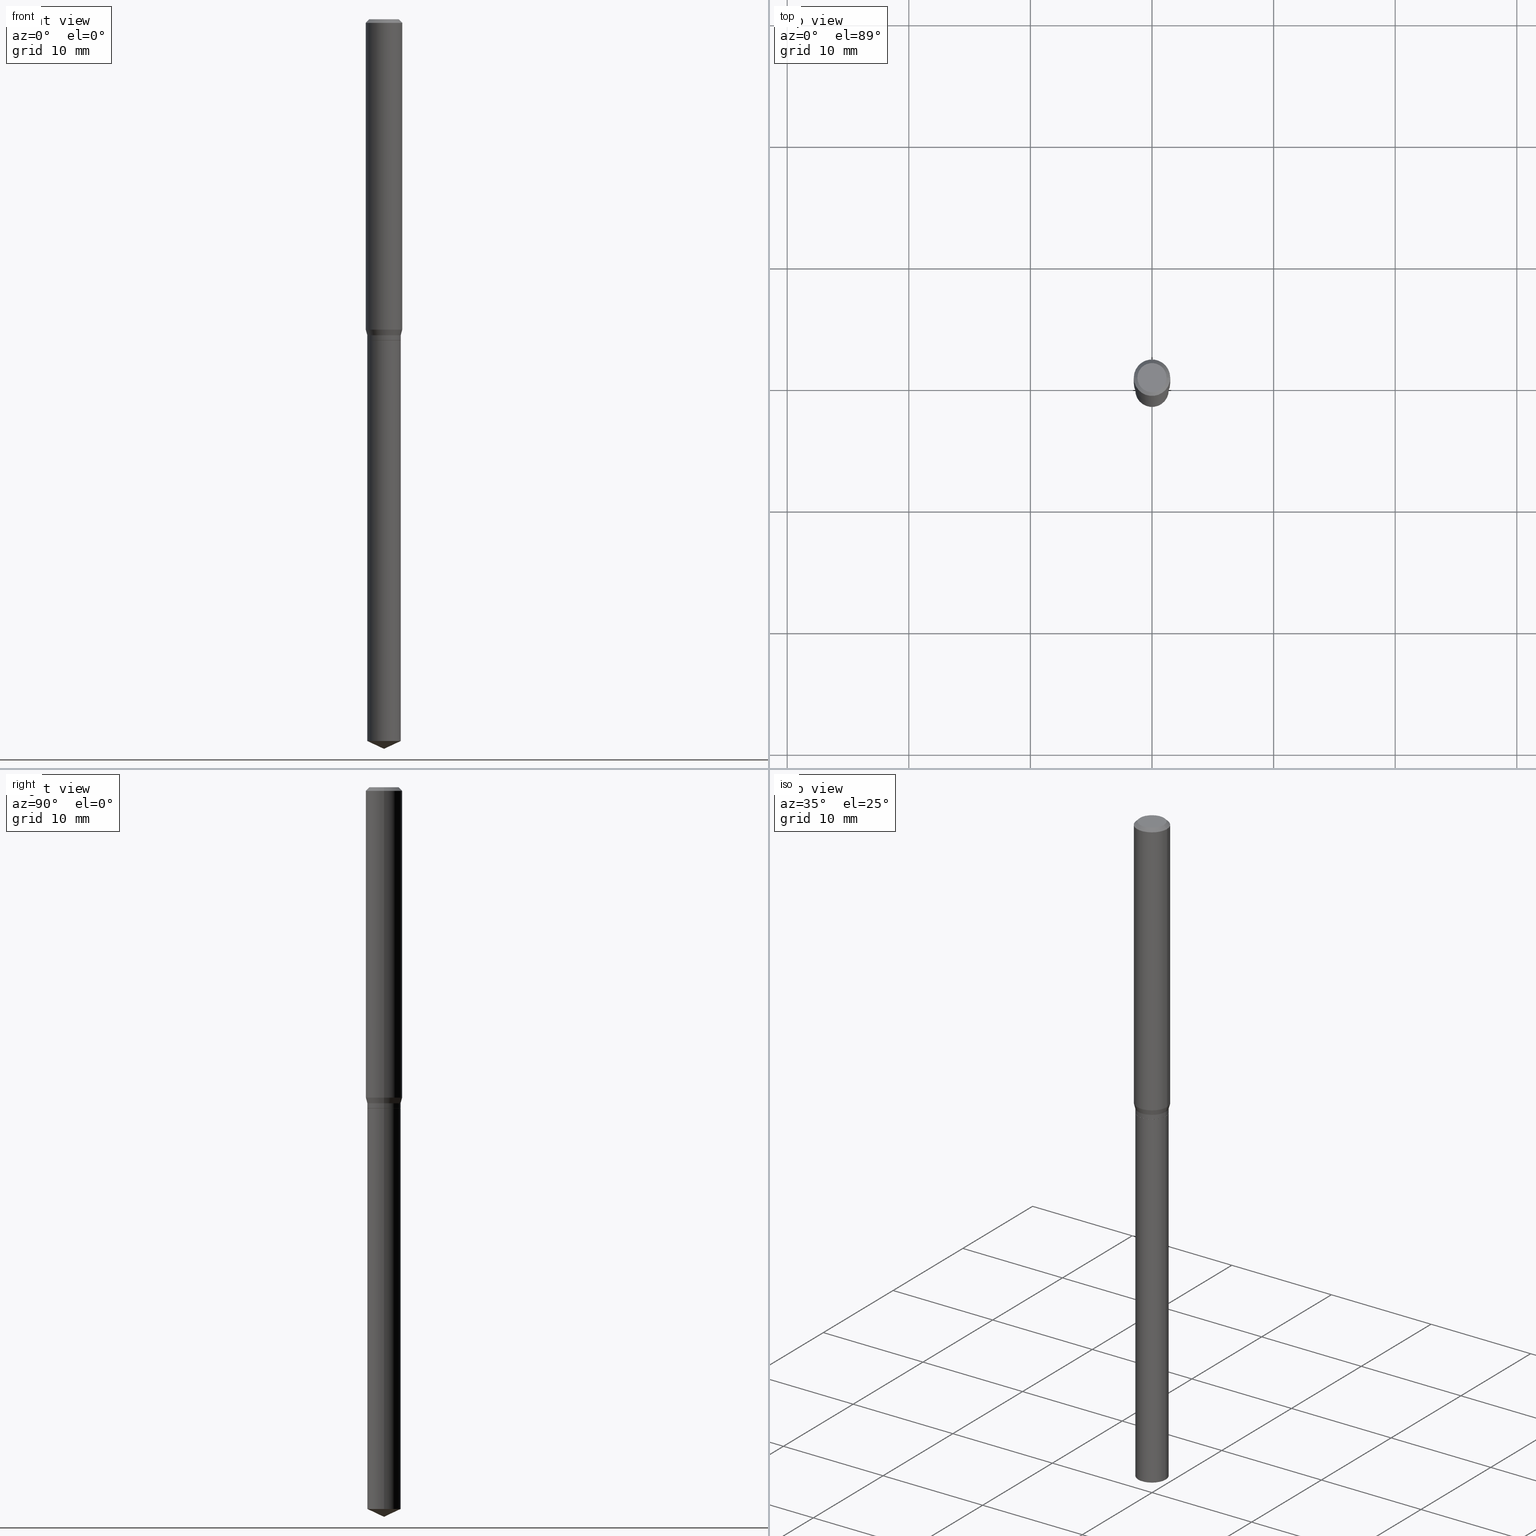
[diagram: canonical four-view strip — front | top / right | iso, engineering-drawing reading convention]
A machine part, canonical four-view strip (front | top / right | iso — engineering-drawing reading convention). The complete STEP part file that produces these views, byte-faithful:
ISO-10303-21;
HEADER;
FILE_DESCRIPTION (( 'STEP AP203' ),
    '1' );
FILE_NAME ('07691.STEP',
    '2024-04-24T01:07:37',
    ( '' ),
    ( '' ),
    'SwSTEP 2.0',
    'SolidWorks 2023',
    '' );
FILE_SCHEMA (( 'CONFIG_CONTROL_DESIGN' ));
ENDSEC;

DATA;
#1 = DIRECTION ( 'NONE',  ( 0.7071067811866138531, -2.468850131082952047E-15, 0.7071067811864811814 ) ) ;
#2 = ADVANCED_FACE ( 'NONE', ( #222 ), #72, .F. ) ;
#3 = DIRECTION ( 'NONE',  ( 1.000000000000000000, -6.982962677686263555E-15, 0.000000000000000000 ) ) ;
#4 = CC_DESIGN_SECURITY_CLASSIFICATION ( #426, ( #488 ) ) ;
#5 = CARTESIAN_POINT ( 'NONE',  ( -2.731847993663685378E-16, -8.247577218615278049E-15, -2.362200000000000077 ) ) ;
#6 = PERSON_AND_ORGANIZATION ( #11, #364 ) ;
#7 = ORIENTED_EDGE ( 'NONE', *, *, #200, .T. ) ;
#8 = DIRECTION ( 'NONE',  ( 1.000000000000000000, -6.982962677686261977E-15, 0.000000000000000000 ) ) ;
#9 = CARTESIAN_POINT ( 'NONE',  ( 0.05905000000000006077, -4.123439461173744764E-16, 2.879382386107503023E-30 ) ) ;
#10 = AXIS2_PLACEMENT_3D ( 'NONE', #161, #44, #420 ) ;
#11 = PERSON ( 'UNSPECIFIED', 'UNSPECIFIED', 'UNSPECIFIED', ('UNSPECIFIED'), ('UNSPECIFIED'), ('UNSPECIFIED') ) ;
#12 = AXIS2_PLACEMENT_3D ( 'NONE', #276, #338, #86 ) ;
#13 = CARTESIAN_POINT ( 'NONE',  ( -9.050161304213721862E-28, 1.292123180114298104E-13, 37.00787874015748002 ) ) ;
#14 = EDGE_CURVE ( 'NONE', #250, #312, #337, .T. ) ;
#15 = AXIS2_PLACEMENT_3D ( 'NONE', #98, #152, #317 ) ;
#16 = DIRECTION ( 'NONE',  ( -0.7071067811866138531, 7.493145998870593974E-15, 0.7071067811864811814 ) ) ;
#17 = ORIENTED_EDGE ( 'NONE', *, *, #192, .F. ) ;
#18 = DIRECTION ( 'NONE',  ( 1.000000000000000000, -6.982962677686266711E-15, 4.876185090822587894E-29 ) ) ;
#19 = VECTOR ( 'NONE', #230, 39.37007874015748143 ) ;
#20 = PRODUCT_DEFINITION ( 'UNKNOWN', '', #488, #32 ) ;
#21 = ORIENTED_EDGE ( 'NONE', *, *, #325, .T. ) ;
#22 = ORIENTED_EDGE ( 'NONE', *, *, #404, .F. ) ;
#23 = AXIS2_PLACEMENT_3D ( 'NONE', #270, #79, #380 ) ;
#24 = CONICAL_SURFACE ( 'NONE', #302, 84.42940631927254458, 1.134464013796307791 ) ;
#25 = ORIENTED_EDGE ( 'NONE', *, *, #116, .T. ) ;
#26 = DIRECTION ( 'NONE',  ( -1.000000000000000000, 6.982962677686265922E-15, -4.876176775795935793E-29 ) ) ;
#27 = VERTEX_POINT ( 'NONE', #37 ) ;
#28 = EDGE_CURVE ( 'NONE', #145, #65, #376, .T. ) ;
#29 = CARTESIAN_POINT ( 'NONE',  ( 0.05414999999999999675, -4.007173132590277853E-15, -1.039400000000000324 ) ) ;
#30 = ORIENTED_EDGE ( 'NONE', *, *, #275, .T. ) ;
#31 = VECTOR ( 'NONE', #88, 39.37007874015748143 ) ;
#32 = DESIGN_CONTEXT ( 'detailed design', #370, 'design' ) ;
#33 = CARTESIAN_POINT ( 'NONE',  ( 0.05904999999999999832, -4.535783407291118600E-16, -0.01181000000000007044 ) ) ;
#34 = FACE_OUTER_BOUND ( 'NONE', #246, .T. ) ;
#35 = EDGE_CURVE ( 'NONE', #381, #243, #399, .T. ) ;
#36 = DIRECTION ( 'NONE',  ( -2.445468806185136597E-29, 3.491481338843145583E-15, 1.000000000000000000 ) ) ;
#37 = CARTESIAN_POINT ( 'NONE',  ( 0.05414999999999999675, -4.007173132590277853E-15, -1.039400000000000324 ) ) ;
#38 = COORDINATED_UNIVERSAL_TIME_OFFSET ( 5, 0, .BEHIND. ) ;
#39 = DIRECTION ( 'NONE',  ( 1.000000000000000000, -6.982962677686263555E-15, 0.000000000000000000 ) ) ;
#40 = PERSON_AND_ORGANIZATION ( #11, #364 ) ;
#41 = EDGE_CURVE ( 'NONE', #65, #177, #189, .T. ) ;
#42 = CARTESIAN_POINT ( 'NONE',  ( -9.050161304213721862E-28, 1.292123180114298104E-13, 37.00787874015748002 ) ) ;
#43 = LINE ( 'NONE', #49, #31 ) ;
#44 = DIRECTION ( 'NONE',  ( -2.438088387897960049E-29, 3.491481338843145188E-15, 1.000000000000000000 ) ) ;
#45 = ORIENTED_EDGE ( 'NONE', *, *, #450, .T. ) ;
#46 = COORDINATED_UNIVERSAL_TIME_OFFSET ( 5, 0, .BEHIND. ) ;
#47 = EDGE_CURVE ( 'NONE', #312, #243, #294, .T. ) ;
#48 = DIRECTION ( 'NONE',  ( 1.000000000000000000, -6.982962677686266711E-15, 4.876176775795935232E-29 ) ) ;
#49 = CARTESIAN_POINT ( 'NONE',  ( -0.05414999999999998981, -3.187724814490212424E-15, -1.023200000000000109 ) ) ;
#50 = AXIS2_PLACEMENT_3D ( 'NONE', #475, #351, #356 ) ;
#51 = DIRECTION ( 'NONE',  ( 1.000000000000000000, -6.982962677686267499E-15, 0.000000000000000000 ) ) ;
#52 = ADVANCED_FACE ( 'NONE', ( #34 ), #264, .T. ) ;
#53 = ORIENTED_EDGE ( 'NONE', *, *, #435, .F. ) ;
#54 = DIRECTION ( 'NONE',  ( 0.000000000000000000, 0.000000000000000000, 1.000000000000000000 ) ) ;
#55 = CIRCLE ( 'NONE', #219, 0.05414999999999998981 ) ;
#56 = ORIENTED_EDGE ( 'NONE', *, *, #192, .T. ) ;
#57 = PERSON_AND_ORGANIZATION_ROLE ( 'design_owner' ) ;
#58 = ORIENTED_EDGE ( 'NONE', *, *, #125, .T. ) ;
#59 = CONICAL_SURFACE ( 'NONE', #347, 0.05364999999999999630, 0.7853981633975420928 ) ;
#60 =( NAMED_UNIT ( * ) PLANE_ANGLE_UNIT ( ) SI_UNIT ( $, .RADIAN. ) );
#61 = DIRECTION ( 'NONE',  ( 1.000000000000000000, -6.982962677686261977E-15, 0.000000000000000000 ) ) ;
#62 = EDGE_CURVE ( 'NONE', #250, #403, #445, .T. ) ;
#63 = ORIENTED_EDGE ( 'NONE', *, *, #232, .F. ) ;
#64 = DIRECTION ( 'NONE',  ( -0.7071067811865453523, 2.468850131082234184E-15, -0.7071067811865496822 ) ) ;
#65 = VERTEX_POINT ( 'NONE', #224 ) ;
#66 = LINE ( 'NONE', #29, #300 ) ;
#67 = DIRECTION ( 'NONE',  ( 1.000000000000000000, -6.982962677686266711E-15, 4.876185090822587894E-29 ) ) ;
#68 = CIRCLE ( 'NONE', #479, 0.05905000000000011628 ) ;
#69 = ADVANCED_FACE ( 'NONE', ( #485 ), #113, .T. ) ;
#70 = CARTESIAN_POINT ( 'NONE',  ( 5.776686413970529753E-29, -8.247577218615279626E-15, -2.362200000000000077 ) ) ;
#71 = CARTESIAN_POINT ( 'NONE',  ( 2.541820277148831753E-29, -3.629045703593565980E-15, -1.039400000000000324 ) ) ;
#72 = PLANE ( 'NONE',  #323 ) ;
#73 = ADVANCED_BREP_SHAPE_REPRESENTATION ( '07691', ( #455, #283, #99 ), #147 ) ;
#74 = CARTESIAN_POINT ( 'NONE',  ( 2.502203682488631823E-29, -3.572483705904306898E-15, -1.023200000000000109 ) ) ;
#75 = COORDINATED_UNIVERSAL_TIME_OFFSET ( 5, 0, .BEHIND. ) ;
#76 = DIRECTION ( 'NONE',  ( -2.445468806185136597E-29, 3.491481338843145583E-15, 1.000000000000000000 ) ) ;
#77 = LINE ( 'NONE', #242, #402 ) ;
#78 =( NAMED_UNIT ( * ) SI_UNIT ( $, .STERADIAN. ) SOLID_ANGLE_UNIT ( ) );
#79 = DIRECTION ( 'NONE',  ( -2.445468806185136597E-29, 3.491481338843145583E-15, 1.000000000000000000 ) ) ;
#80 = PERSON_AND_ORGANIZATION ( #11, #364 ) ;
#81 = ADVANCED_FACE ( 'NONE', ( #295 ), #122, .T. ) ;
#82 = APPLICATION_PROTOCOL_DEFINITION ( 'international standard', 'config_control_design', 1994, #370 ) ;
#83 = AXIS2_PLACEMENT_3D ( 'NONE', #249, #480, #293 ) ;
#84 = DIRECTION ( 'NONE',  ( -2.445468806185136597E-29, 3.491481338843145583E-15, 1.000000000000000000 ) ) ;
#85 = SECURITY_CLASSIFICATION_LEVEL ( 'unclassified' ) ;
#86 = DIRECTION ( 'NONE',  ( 1.000000000000000000, -6.982962677686263555E-15, 0.000000000000000000 ) ) ;
#87 = AXIS2_PLACEMENT_3D ( 'NONE', #159, #36, #489 ) ;
#88 = DIRECTION ( 'NONE',  ( -0.2588190451025215721, 5.211531920934551831E-15, 0.9659258262890679791 ) ) ;
#89 = EDGE_CURVE ( 'NONE', #391, #472, #95, .T. ) ;
#90 = ORIENTED_EDGE ( 'NONE', *, *, #379, .F. ) ;
#91 = AXIS2_PLACEMENT_3D ( 'NONE', #308, #346, #168 ) ;
#92 = VERTEX_POINT ( 'NONE', #297 ) ;
#93 = CARTESIAN_POINT ( 'NONE',  ( 0.000000000000000000, 0.000000000000000000, 0.000000000000000000 ) ) ;
#94 = ORIENTED_EDGE ( 'NONE', *, *, #47, .T. ) ;
#95 = CIRCLE ( 'NONE', #158, 0.05414999999999998981 ) ;
#96 = ORIENTED_EDGE ( 'NONE', *, *, #354, .T. ) ;
#97 = EDGE_CURVE ( 'NONE', #381, #92, #422, .T. ) ;
#98 = CARTESIAN_POINT ( 'NONE',  ( 2.541820277148831753E-29, -3.629045703593565980E-15, -1.039400000000000324 ) ) ;
#99 = AXIS2_PLACEMENT_3D ( 'NONE', #93, #54, #342 ) ;
#100 = EDGE_LOOP ( 'NONE', ( #378, #309, #394, #463 ) ) ;
#101 = LOCAL_TIME ( 21, 7, 37.00000000000000000, #229 ) ;
#102 = FACE_OUTER_BOUND ( 'NONE', #284, .T. ) ;
#103 = EDGE_LOOP ( 'NONE', ( #421, #45 ) ) ;
#104 = CLOSED_SHELL ( 'NONE', ( #143, #134, #150, #362, #2 ) ) ;
#105 = CARTESIAN_POINT ( 'NONE',  ( 2.541820277148831753E-29, -3.629045703593565980E-15, -1.039400000000000324 ) ) ;
#106 = DIRECTION ( 'NONE',  ( -2.445468806185136597E-29, 3.491481338843145583E-15, 1.000000000000000000 ) ) ;
#107 = CC_DESIGN_PERSON_AND_ORGANIZATION_ASSIGNMENT ( #138, #115, ( #20 ) ) ;
#108 = CARTESIAN_POINT ( 'NONE',  ( 2.541820277148831753E-29, -3.629045703593565980E-15, -1.039400000000000324 ) ) ;
#109 = DIRECTION ( 'NONE',  ( -2.445468806185136597E-29, 3.491481338843145583E-15, 1.000000000000000000 ) ) ;
#110 = CIRCLE ( 'NONE', #228, 0.05904999999999999832 ) ;
#111 = CONICAL_SURFACE ( 'NONE', #299, 0.05904999999999999832, 0.7853981633974452814 ) ;
#112 = DIRECTION ( 'NONE',  ( 1.000000000000000000, -6.982962677686271444E-15, 0.000000000000000000 ) ) ;
#113 = CONICAL_SURFACE ( 'NONE', #269, 0.05904999999999999832, 0.7853981633974452814 ) ;
#114 = EDGE_LOOP ( 'NONE', ( #253, #214 ) ) ;
#115 = PERSON_AND_ORGANIZATION_ROLE ( 'creator' ) ;
#116 = EDGE_CURVE ( 'NONE', #472, #391, #239, .T. ) ;
#117 = CARTESIAN_POINT ( 'NONE',  ( -0.05905000000000006077, 4.195754854663395916E-16, -2.904631170795524694E-30 ) ) ;
#118 = AXIS2_PLACEMENT_3D ( 'NONE', #306, #272, #205 ) ;
#119 = CIRCLE ( 'NONE', #418, 0.05414999999999999675 ) ;
#120 = CARTESIAN_POINT ( 'NONE',  ( 0.05364999999999999630, -4.003681651251434057E-15, -1.039400000000000324 ) ) ;
#121 = PRODUCT_DEFINITION_SHAPE ( 'NONE', 'NONE',  #20 ) ;
#122 = CONICAL_SURFACE ( 'NONE', #188, 0.05414999999999998981, 0.2617993877991502960 ) ;
#123 = DIRECTION ( 'NONE',  ( -2.445468806185136597E-29, 3.491481338843145583E-15, 1.000000000000000000 ) ) ;
#124 = APPROVAL_DATE_TIME ( #490, #182 ) ;
#125 = EDGE_CURVE ( 'NONE', #185, #204, #195, .T. ) ;
#126 = ORIENTED_EDGE ( 'NONE', *, *, #116, .F. ) ;
#127 = APPLICATION_PROTOCOL_DEFINITION ( 'international standard', 'config_control_design', 1994, #465 ) ;
#128 = PLANE ( 'NONE',  #10 ) ;
#129 = DATE_AND_TIME ( #231, #101 ) ;
#130 = CIRCLE ( 'NONE', #274, 0.04724000000000000421 ) ;
#131 = VECTOR ( 'NONE', #170, 39.37007874015748143 ) ;
#132 = DIRECTION ( 'NONE',  ( -2.445468806185136597E-29, 3.491481338843145583E-15, 1.000000000000000000 ) ) ;
#133 = VERTEX_POINT ( 'NONE', #198 ) ;
#134 = ADVANCED_FACE ( 'NONE', ( #447 ), #24, .T. ) ;
#135 = FACE_OUTER_BOUND ( 'NONE', #210, .T. ) ;
#136 = ORIENTED_EDGE ( 'NONE', *, *, #435, .T. ) ;
#137 = ORIENTED_EDGE ( 'NONE', *, *, #225, .T. ) ;
#138 = PERSON_AND_ORGANIZATION ( #11, #364 ) ;
#139 = ORIENTED_EDGE ( 'NONE', *, *, #450, .F. ) ;
#140 =( CONVERSION_BASED_UNIT ( 'INCH', #453 ) LENGTH_UNIT ( ) NAMED_UNIT ( #247 ) );
#141 = VECTOR ( 'NONE', #1, 39.37007874015748143 ) ;
#142 = ORIENTED_EDGE ( 'NONE', *, *, #298, .T. ) ;
#143 = ADVANCED_FACE ( 'NONE', ( #481 ), #257, .T. ) ;
#144 = LINE ( 'NONE', #296, #341 ) ;
#145 = VERTEX_POINT ( 'NONE', #458 ) ;
#146 = CYLINDRICAL_SURFACE ( 'NONE', #15, 0.05414999999999999675 ) ;
#147 =( GEOMETRIC_REPRESENTATION_CONTEXT ( 3 ) GLOBAL_UNCERTAINTY_ASSIGNED_CONTEXT ( ( #469 ) ) GLOBAL_UNIT_ASSIGNED_CONTEXT ( ( #140, #60, #78 ) ) REPRESENTATION_CONTEXT ( 'NONE', 'WORKASPACE' ) );
#148 = ORIENTED_EDGE ( 'NONE', *, *, #62, .F. ) ;
#149 = FACE_OUTER_BOUND ( 'NONE', #268, .T. ) ;
#150 = ADVANCED_FACE ( 'NONE', ( #135 ), #483, .T. ) ;
#151 = CARTESIAN_POINT ( 'NONE',  ( 5.714936957912137219E-29, -8.159415360665465323E-15, -2.336949440310907011 ) ) ;
#152 = DIRECTION ( 'NONE',  ( -2.445468806185136597E-29, 3.491481338843145583E-15, 1.000000000000000000 ) ) ;
#153 = DIRECTION ( 'NONE',  ( -2.445468806185136877E-29, 3.491481338843145188E-15, 1.000000000000000000 ) ) ;
#154 = CARTESIAN_POINT ( 'NONE',  ( 2.502203682488631823E-29, -3.572483705904306898E-15, -1.023200000000000109 ) ) ;
#155 = AXIS2_PLACEMENT_3D ( 'NONE', #440, #256, #26 ) ;
#156 = DIRECTION ( 'NONE',  ( -2.445468806185136597E-29, 3.491481338843145583E-15, 1.000000000000000000 ) ) ;
#157 = APPROVAL ( #304, 'UNSPECIFIED' ) ;
#158 = AXIS2_PLACEMENT_3D ( 'NONE', #305, #486, #446 ) ;
#159 = CARTESIAN_POINT ( 'NONE',  ( 2.888098660104663766E-31, -4.123439461173779647E-17, -0.01181000000000007044 ) ) ;
#160 = APPROVAL_STATUS ( 'not_yet_approved' ) ;
#161 = CARTESIAN_POINT ( 'NONE',  ( 4.389723580835311985E-29, -9.827429965901774543E-16, -1.039400000000000324 ) ) ;
#162 = APPROVAL_PERSON_ORGANIZATION ( #6, #157, #408 ) ;
#163 = EDGE_CURVE ( 'NONE', #133, #277, #77, .T. ) ;
#164 = CYLINDRICAL_SURFACE ( 'NONE', #392, 0.05414999999999998981 ) ;
#165 = CARTESIAN_POINT ( 'NONE',  ( 0.05414999999999998981, -3.950611134901017982E-15, -1.023200000000000109 ) ) ;
#166 = CARTESIAN_POINT ( 'NONE',  ( 0.000000000000000000, 0.000000000000000000, 0.000000000000000000 ) ) ;
#167 = ORIENTED_EDGE ( 'NONE', *, *, #343, .F. ) ;
#168 = DIRECTION ( 'NONE',  ( 1.000000000000000000, -6.982962677686261977E-15, 0.000000000000000000 ) ) ;
#169 = CC_DESIGN_APPROVAL ( #157, ( #488 ) ) ;
#170 = DIRECTION ( 'NONE',  ( -2.445468806185136877E-29, 3.491481338843145188E-15, 1.000000000000000000 ) ) ;
#171 = ORIENTED_EDGE ( 'NONE', *, *, #298, .F. ) ;
#172 = ADVANCED_FACE ( 'NONE', ( #233 ), #128, .F. ) ;
#173 = CARTESIAN_POINT ( 'NONE',  ( -0.05905000000000011628, -3.089059330261782575E-15, -1.004912951042912006 ) ) ;
#174 = ORIENTED_EDGE ( 'NONE', *, *, #28, .T. ) ;
#175 = ORIENTED_EDGE ( 'NONE', *, *, #487, .F. ) ;
#176 = ADVANCED_FACE ( 'NONE', ( #206 ), #190, .T. ) ;
#177 = VERTEX_POINT ( 'NONE', #413 ) ;
#178 = ORIENTED_EDGE ( 'NONE', *, *, #47, .F. ) ;
#179 = AXIS2_PLACEMENT_3D ( 'NONE', #187, #156, #303 ) ;
#180 = CARTESIAN_POINT ( 'NONE',  ( 2.457483274706892712E-29, -3.508634815728122857E-15, -1.004912951042912006 ) ) ;
#181 = EDGE_LOOP ( 'NONE', ( #174, #430, #175, #90 ) ) ;
#182 = APPROVAL ( #160, 'UNSPECIFIED' ) ;
#183 = CARTESIAN_POINT ( 'NONE',  ( 0.000000000000000000, 0.000000000000000000, 0.000000000000000000 ) ) ;
#184 = CC_DESIGN_APPROVAL ( #182, ( #426 ) ) ;
#185 = VERTEX_POINT ( 'NONE', #120 ) ;
#186 = DIRECTION ( 'NONE',  ( -2.445468806185136597E-29, 3.491481338843145583E-15, 1.000000000000000000 ) ) ;
#187 = CARTESIAN_POINT ( 'NONE',  ( 0.000000000000000000, 0.000000000000000000, 0.000000000000000000 ) ) ;
#188 = AXIS2_PLACEMENT_3D ( 'NONE', #74, #227, #255 ) ;
#189 = LINE ( 'NONE', #443, #332 ) ;
#190 = CONICAL_SURFACE ( 'NONE', #12, 0.05414999999999998981, 0.2617993877991502960 ) ;
#191 = DIRECTION ( 'NONE',  ( 1.000000000000000000, -6.982962677686261977E-15, 0.000000000000000000 ) ) ;
#192 = EDGE_CURVE ( 'NONE', #204, #277, #55, .T. ) ;
#193 = APPROVAL_ROLE ( '' ) ;
#194 = CIRCLE ( 'NONE', #23, 0.05364999999999999630 ) ;
#195 = LINE ( 'NONE', #439, #141 ) ;
#196 = DATE_AND_TIME ( #273, #387 ) ;
#197 = AXIS2_PLACEMENT_3D ( 'NONE', #13, #132, #51 ) ;
#198 = CARTESIAN_POINT ( 'NONE',  ( -0.05364999999999999630, -3.245190298684161993E-15, -1.039400000000000324 ) ) ;
#199 = CALENDAR_DATE ( 2024, 23, 4 ) ;
#200 = EDGE_CURVE ( 'NONE', #204, #472, #424, .T. ) ;
#201 = CARTESIAN_POINT ( 'NONE',  ( 2.888098660104663766E-31, -4.123439461173779647E-17, -0.01181000000000007044 ) ) ;
#202 = DIRECTION ( 'NONE',  ( -2.445468806185136597E-29, 3.491481338843145583E-15, 1.000000000000000000 ) ) ;
#203 = PERSON_AND_ORGANIZATION_ROLE ( 'design_supplier' ) ;
#204 = VERTEX_POINT ( 'NONE', #267 ) ;
#205 = DIRECTION ( 'NONE',  ( 1.000000000000000000, -6.982962677686263555E-15, 0.000000000000000000 ) ) ;
#206 = FACE_OUTER_BOUND ( 'NONE', #226, .T. ) ;
#207 = EDGE_CURVE ( 'NONE', #277, #204, #470, .T. ) ;
#208 = DIRECTION ( 'NONE',  ( -2.445468806185136877E-29, 3.491481338843145188E-15, 1.000000000000000000 ) ) ;
#209 = CALENDAR_DATE ( 2024, 23, 4 ) ;
#210 = EDGE_LOOP ( 'NONE', ( #322, #142, #289 ) ) ;
#211 = ADVANCED_FACE ( 'NONE', ( #238 ), #384, .T. ) ;
#212 = ORIENTED_EDGE ( 'NONE', *, *, #200, .F. ) ;
#213 = PERSON_AND_ORGANIZATION ( #11, #364 ) ;
#214 = ORIENTED_EDGE ( 'NONE', *, *, #281, .F. ) ;
#215 = DIRECTION ( 'NONE',  ( -2.445468806185136877E-29, 3.491481338843145188E-15, 1.000000000000000000 ) ) ;
#216 = EDGE_LOOP ( 'NONE', ( #171, #137, #280 ) ) ;
#217 = ADVANCED_FACE ( 'NONE', ( #377 ), #111, .T. ) ;
#218 = DIRECTION ( 'NONE',  ( 1.000000000000000000, -6.982962677686266711E-15, 4.876176775795935793E-29 ) ) ;
#219 = AXIS2_PLACEMENT_3D ( 'NONE', #386, #123, #3 ) ;
#220 = ORIENTED_EDGE ( 'NONE', *, *, #62, .T. ) ;
#221 = CARTESIAN_POINT ( 'NONE',  ( -0.04724000000000000421, 3.504923541997677355E-16, -3.380025165670481712E-19 ) ) ;
#222 = FACE_OUTER_BOUND ( 'NONE', #103, .T. ) ;
#223 = CYLINDRICAL_SURFACE ( 'NONE', #244, 0.05905000000000006077 ) ;
#224 = CARTESIAN_POINT ( 'NONE',  ( -0.05415000000000000369, -7.774656469251370060E-15, -2.336949440310907011 ) ) ;
#225 = EDGE_CURVE ( 'NONE', #467, #65, #383, .T. ) ;
#226 = EDGE_LOOP ( 'NONE', ( #25, #315, #167, #22 ) ) ;
#227 = DIRECTION ( 'NONE',  ( -2.445468806185136597E-29, 3.491481338843145583E-15, 1.000000000000000000 ) ) ;
#228 = AXIS2_PLACEMENT_3D ( 'NONE', #484, #186, #438 ) ;
#229 = COORDINATED_UNIVERSAL_TIME_OFFSET ( 5, 0, .BEHIND. ) ;
#230 = DIRECTION ( 'NONE',  ( -2.445468806185136877E-29, 3.491481338843145188E-15, 1.000000000000000000 ) ) ;
#231 = CALENDAR_DATE ( 2024, 23, 4 ) ;
#232 = EDGE_CURVE ( 'NONE', #92, #312, #451, .T. ) ;
#233 = FACE_OUTER_BOUND ( 'NONE', #114, .T. ) ;
#234 = CARTESIAN_POINT ( 'NONE',  ( 2.731847993664840566E-16, -8.247577218615281204E-15, -2.362200000000000077 ) ) ;
#235 = PERSON_AND_ORGANIZATION ( #11, #364 ) ;
#236 = ORIENTED_EDGE ( 'NONE', *, *, #232, .T. ) ;
#237 = APPROVAL_STATUS ( 'not_yet_approved' ) ;
#238 = FACE_OUTER_BOUND ( 'NONE', #352, .T. ) ;
#239 = CIRCLE ( 'NONE', #357, 0.05414999999999998981 ) ;
#240 = CC_DESIGN_DATE_AND_TIME_ASSIGNMENT ( #129, #452, ( #20 ) ) ;
#241 = DIRECTION ( 'NONE',  ( -2.445468806185136877E-29, 3.491481338843145188E-15, 1.000000000000000000 ) ) ;
#242 = CARTESIAN_POINT ( 'NONE',  ( -0.05364999999999999630, -3.247839525858272405E-15, -1.039400000000000324 ) ) ;
#243 = VERTEX_POINT ( 'NONE', #462 ) ;
#244 = AXIS2_PLACEMENT_3D ( 'NONE', #183, #251, #218 ) ;
#245 = ORIENTED_EDGE ( 'NONE', *, *, #125, .F. ) ;
#246 = EDGE_LOOP ( 'NONE', ( #56, #361, #126, #212 ) ) ;
#247 = DIMENSIONAL_EXPONENTS ( 1.000000000000000000, 0.000000000000000000, 0.000000000000000000, 0.000000000000000000, 0.000000000000000000, 0.000000000000000000, 0.000000000000000000 ) ;
#248 = ORIENTED_EDGE ( 'NONE', *, *, #14, .F. ) ;
#249 = CARTESIAN_POINT ( 'NONE',  ( 2.541820277148831753E-29, -3.629045703593565980E-15, -1.039400000000000324 ) ) ;
#250 = VERTEX_POINT ( 'NONE', #409 ) ;
#251 = DIRECTION ( 'NONE',  ( -2.445468806185136597E-29, 3.491481338843145583E-15, 1.000000000000000000 ) ) ;
#252 = EDGE_CURVE ( 'NONE', #391, #381, #43, .T. ) ;
#253 = ORIENTED_EDGE ( 'NONE', *, *, #311, .F. ) ;
#254 = DIRECTION ( 'NONE',  ( -2.445468806185136597E-29, 3.491481338843145583E-15, 1.000000000000000000 ) ) ;
#255 = DIRECTION ( 'NONE',  ( 1.000000000000000000, -6.982962677686263555E-15, 0.000000000000000000 ) ) ;
#256 = DIRECTION ( 'NONE',  ( 2.438088387897960049E-29, -3.491481338843145188E-15, -1.000000000000000000 ) ) ;
#257 = CYLINDRICAL_SURFACE ( 'NONE', #482, 0.05414999999999999675 ) ;
#258 = ADVANCED_FACE ( 'NONE', ( #340 ), #164, .T. ) ;
#259 = CARTESIAN_POINT ( 'NONE',  ( 8.265746106709734507E-48, -1.180129479067563789E-33, -3.380025165646692144E-19 ) ) ;
#260 = VECTOR ( 'NONE', #334, 39.37007874015748143 ) ;
#261 = DIRECTION ( 'NONE',  ( -1.000000000000000000, 6.982962677686265922E-15, -4.876176775795935793E-29 ) ) ;
#262 = PERSON_AND_ORGANIZATION ( #11, #364 ) ;
#263 = APPROVAL ( #237, 'UNSPECIFIED' ) ;
#264 = CYLINDRICAL_SURFACE ( 'NONE', #179, 0.05414999999999998981 ) ;
#265 = LOCAL_TIME ( 21, 7, 37.00000000000000000, #46 ) ;
#266 = CALENDAR_DATE ( 2024, 23, 4 ) ;
#267 = CARTESIAN_POINT ( 'NONE',  ( 0.05414999999999998981, -4.005427391920856349E-15, -1.038900000000000379 ) ) ;
#268 = EDGE_LOOP ( 'NONE', ( #350, #320, #17, #245 ) ) ;
#269 = AXIS2_PLACEMENT_3D ( 'NONE', #375, #405, #333 ) ;
#270 = CARTESIAN_POINT ( 'NONE',  ( 2.541820277148831753E-29, -3.629045703593565980E-15, -1.039400000000000324 ) ) ;
#271 = APPROVAL_DATE_TIME ( #374, #157 ) ;
#272 = DIRECTION ( 'NONE',  ( -2.445468806185136597E-29, 3.491481338843145583E-15, 1.000000000000000000 ) ) ;
#273 = CALENDAR_DATE ( 2024, 23, 4 ) ;
#274 = AXIS2_PLACEMENT_3D ( 'NONE', #477, #349, #18 ) ;
#275 = EDGE_CURVE ( 'NONE', #65, #145, #335, .T. ) ;
#276 = CARTESIAN_POINT ( 'NONE',  ( 2.502203682488631823E-29, -3.572483705904306898E-15, -1.023200000000000109 ) ) ;
#277 = VERTEX_POINT ( 'NONE', #454 ) ;
#278 = AXIS2_PLACEMENT_3D ( 'NONE', #151, #106, #191 ) ;
#279 = DIRECTION ( 'NONE',  ( 1.000000000000000000, -6.982962677686266711E-15, 4.876176775795935793E-29 ) ) ;
#280 = ORIENTED_EDGE ( 'NONE', *, *, #28, .F. ) ;
#281 = EDGE_CURVE ( 'NONE', #133, #185, #194, .T. ) ;
#282 = ORIENTED_EDGE ( 'NONE', *, *, #325, .F. ) ;
#283 = MANIFOLD_SOLID_BREP ( 'Body-Move/Copy2[2]', #464 ) ;
#284 = EDGE_LOOP ( 'NONE', ( #389, #388, #178, #63 ) ) ;
#285 = MECHANICAL_CONTEXT ( 'NONE', #465, 'mechanical' ) ;
#286 = AXIS2_PLACEMENT_3D ( 'NONE', #372, #441, #407 ) ;
#287 = ORIENTED_EDGE ( 'NONE', *, *, #14, .T. ) ;
#288 = FACE_OUTER_BOUND ( 'NONE', #330, .T. ) ;
#289 = ORIENTED_EDGE ( 'NONE', *, *, #275, .F. ) ;
#290 = CARTESIAN_POINT ( 'NONE',  ( -0.05414999999999998981, 3.847588914140941782E-16, -2.663603351373030908E-30 ) ) ;
#291 = AXIS2_PLACEMENT_3D ( 'NONE', #108, #363, #61 ) ;
#292 = ORIENTED_EDGE ( 'NONE', *, *, #35, .F. ) ;
#293 = DIRECTION ( 'NONE',  ( 1.000000000000000000, -6.982962677686261977E-15, 0.000000000000000000 ) ) ;
#294 = CIRCLE ( 'NONE', #87, 0.05904999999999999832 ) ;
#295 = FACE_OUTER_BOUND ( 'NONE', #100, .T. ) ;
#296 = CARTESIAN_POINT ( 'NONE',  ( 0.05414999999999998981, -3.950611134901017982E-15, -1.023200000000000109 ) ) ;
#297 = CARTESIAN_POINT ( 'NONE',  ( 0.05905000000000011628, -3.920978761845497777E-15, -1.004912951042912006 ) ) ;
#298 = EDGE_CURVE ( 'NONE', #467, #145, #345, .T. ) ;
#299 = AXIS2_PLACEMENT_3D ( 'NONE', #201, #344, #417 ) ;
#300 = VECTOR ( 'NONE', #208, 39.37007874015748143 ) ;
#301 = DIRECTION ( 'NONE',  ( 1.000000000000000000, -6.982962677686267499E-15, 0.000000000000000000 ) ) ;
#302 = AXIS2_PLACEMENT_3D ( 'NONE', #42, #109, #301 ) ;
#303 = DIRECTION ( 'NONE',  ( 1.000000000000000000, -6.982962677686266711E-15, 4.876176775795935232E-29 ) ) ;
#304 = APPROVAL_STATUS ( 'not_yet_approved' ) ;
#305 = CARTESIAN_POINT ( 'NONE',  ( 2.502203682488631823E-29, -3.572483705904306898E-15, -1.023200000000000109 ) ) ;
#306 = CARTESIAN_POINT ( 'NONE',  ( 2.540597542745738951E-29, -3.627299962924145266E-15, -1.038900000000000379 ) ) ;
#307 = APPROVAL_PERSON_ORGANIZATION ( #213, #263, #382 ) ;
#308 = CARTESIAN_POINT ( 'NONE',  ( 5.714936957912137219E-29, -8.159415360665465323E-15, -2.336949440310907011 ) ) ;
#309 = ORIENTED_EDGE ( 'NONE', *, *, #89, .T. ) ;
#310 = CARTESIAN_POINT ( 'NONE',  ( 0.000000000000000000, 0.000000000000000000, 0.000000000000000000 ) ) ;
#311 = EDGE_CURVE ( 'NONE', #185, #133, #442, .T. ) ;
#312 = VERTEX_POINT ( 'NONE', #33 ) ;
#313 = DIRECTION ( 'NONE',  ( 0.9063077870366472721, -4.853149677051340136E-15, 0.4226182617407052144 ) ) ;
#314 = CARTESIAN_POINT ( 'NONE',  ( 0.05414999999999998981, -3.781274289967112808E-16, 2.640449724093498430E-30 ) ) ;
#315 = ORIENTED_EDGE ( 'NONE', *, *, #252, .T. ) ;
#316 = EDGE_CURVE ( 'NONE', #277, #391, #366, .T. ) ;
#317 = DIRECTION ( 'NONE',  ( 1.000000000000000000, -6.982962677686271444E-15, 0.000000000000000000 ) ) ;
#318 = ORIENTED_EDGE ( 'NONE', *, *, #354, .F. ) ;
#319 = DATE_AND_TIME ( #209, #265 ) ;
#320 = ORIENTED_EDGE ( 'NONE', *, *, #163, .T. ) ;
#321 = APPROVAL_PERSON_ORGANIZATION ( #40, #182, #193 ) ;
#322 = ORIENTED_EDGE ( 'NONE', *, *, #225, .F. ) ;
#323 = AXIS2_PLACEMENT_3D ( 'NONE', #368, #365, #261 ) ;
#324 = EDGE_LOOP ( 'NONE', ( #437, #396, #7, #415 ) ) ;
#325 = EDGE_CURVE ( 'NONE', #403, #243, #398, .T. ) ;
#326 = DIRECTION ( 'NONE',  ( 1.000000000000000000, -6.982962677686266711E-15, 0.000000000000000000 ) ) ;
#327 = EDGE_LOOP ( 'NONE', ( #136, #220 ) ) ;
#328 = DIRECTION ( 'NONE',  ( 1.000000000000000000, -6.982962677686261977E-15, 0.000000000000000000 ) ) ;
#329 = CC_DESIGN_APPROVAL ( #263, ( #20 ) ) ;
#330 = EDGE_LOOP ( 'NONE', ( #432, #428, #58, #355 ) ) ;
#331 = CARTESIAN_POINT ( 'NONE',  ( -0.05414999999999998981, -3.215132943000131608E-15, -1.023200000000000109 ) ) ;
#332 = VECTOR ( 'NONE', #153, 39.37007874015748143 ) ;
#333 = DIRECTION ( 'NONE',  ( -1.000000000000000000, 6.982962677686266711E-15, 0.000000000000000000 ) ) ;
#334 = DIRECTION ( 'NONE',  ( 0.7071067811865453523, -7.319954787623248157E-15, -0.7071067811865496822 ) ) ;
#335 = CIRCLE ( 'NONE', #91, 0.05414999999999999675 ) ;
#336 = CARTESIAN_POINT ( 'NONE',  ( 0.05904999999999999832, -4.463468013801466955E-16, -0.01181000000000007044 ) ) ;
#337 = LINE ( 'NONE', #336, #260 ) ;
#338 = DIRECTION ( 'NONE',  ( -2.445468806185136597E-29, 3.491481338843145583E-15, 1.000000000000000000 ) ) ;
#339 = PRODUCT ( '07691', '07691', '', ( #285 ) ) ;
#340 = FACE_OUTER_BOUND ( 'NONE', #324, .T. ) ;
#341 = VECTOR ( 'NONE', #358, 39.37007874015748143 ) ;
#342 = DIRECTION ( 'NONE',  ( 1.000000000000000000, 0.000000000000000000, 0.000000000000000000 ) ) ;
#343 = EDGE_CURVE ( 'NONE', #92, #381, #68, .T. ) ;
#344 = DIRECTION ( 'NONE',  ( 2.445468806185136597E-29, -3.491481338843145583E-15, -1.000000000000000000 ) ) ;
#345 = LINE ( 'NONE', #234, #449 ) ;
#346 = DIRECTION ( 'NONE',  ( -2.445468806185136597E-29, 3.491481338843145583E-15, 1.000000000000000000 ) ) ;
#347 = AXIS2_PLACEMENT_3D ( 'NONE', #105, #254, #8 ) ;
#348 = CC_DESIGN_PERSON_AND_ORGANIZATION_ASSIGNMENT ( #416, #57, ( #339 ) ) ;
#349 = DIRECTION ( 'NONE',  ( -2.445468806185136597E-29, 3.491481338843145583E-15, 1.000000000000000000 ) ) ;
#350 = ORIENTED_EDGE ( 'NONE', *, *, #311, .T. ) ;
#351 = DIRECTION ( 'NONE',  ( -2.445468806185136597E-29, 3.491481338843145583E-15, 1.000000000000000000 ) ) ;
#352 = EDGE_LOOP ( 'NONE', ( #292, #476, #236, #318 ) ) ;
#353 = VECTOR ( 'NONE', #215, 39.37007874015748143 ) ;
#354 = EDGE_CURVE ( 'NONE', #243, #312, #110, .T. ) ;
#355 = ORIENTED_EDGE ( 'NONE', *, *, #207, .F. ) ;
#356 = DIRECTION ( 'NONE',  ( 1.000000000000000000, -6.982962677686261977E-15, 0.000000000000000000 ) ) ;
#357 = AXIS2_PLACEMENT_3D ( 'NONE', #154, #76, #39 ) ;
#358 = DIRECTION ( 'NONE',  ( 0.2588190451025215721, 1.565188264969619995E-15, 0.9659258262890679791 ) ) ;
#359 = EDGE_LOOP ( 'NONE', ( #148, #287, #94, #282 ) ) ;
#360 = DIRECTION ( 'NONE',  ( -2.445468806185136597E-29, 3.491481338843145583E-15, 1.000000000000000000 ) ) ;
#361 = ORIENTED_EDGE ( 'NONE', *, *, #316, .T. ) ;
#362 = ADVANCED_FACE ( 'NONE', ( #434 ), #146, .T. ) ;
#363 = DIRECTION ( 'NONE',  ( -2.445468806185136597E-29, 3.491481338843145583E-15, 1.000000000000000000 ) ) ;
#364 = ORGANIZATION ( 'UNSPECIFIED', 'UNSPECIFIED', '' ) ;
#365 = DIRECTION ( 'NONE',  ( 2.438088387897960049E-29, -3.491481338843145188E-15, -1.000000000000000000 ) ) ;
#366 = LINE ( 'NONE', #290, #353 ) ;
#367 = DIRECTION ( 'NONE',  ( -2.445468806185136597E-29, 3.491481338843145583E-15, 1.000000000000000000 ) ) ;
#368 = CARTESIAN_POINT ( 'NONE',  ( 7.109797925176289514E-30, -6.250913482554449749E-15, -1.039400000000000324 ) ) ;
#369 = DATE_TIME_ROLE ( 'classification_date' ) ;
#370 = APPLICATION_CONTEXT ( 'configuration controlled 3d designs of mechanical parts and assemblies' ) ;
#371 = LOCAL_TIME ( 21, 7, 37.00000000000000000, #75 ) ;
#372 = CARTESIAN_POINT ( 'NONE',  ( 2.457483274706892712E-29, -3.508634815728122857E-15, -1.004912951042912006 ) ) ;
#373 = CC_DESIGN_DATE_AND_TIME_ASSIGNMENT ( #196, #369, ( #426 ) ) ;
#374 = DATE_AND_TIME ( #199, #371 ) ;
#375 = CARTESIAN_POINT ( 'NONE',  ( 2.888098660104663766E-31, -4.123439461173779647E-17, -0.01181000000000007044 ) ) ;
#376 = CIRCLE ( 'NONE', #278, 0.05414999999999999675 ) ;
#377 = FACE_OUTER_BOUND ( 'NONE', #359, .T. ) ;
#378 = ORIENTED_EDGE ( 'NONE', *, *, #252, .F. ) ;
#379 = EDGE_CURVE ( 'NONE', #145, #27, #66, .T. ) ;
#380 = DIRECTION ( 'NONE',  ( 1.000000000000000000, -6.982962677686261977E-15, 0.000000000000000000 ) ) ;
#381 = VERTEX_POINT ( 'NONE', #173 ) ;
#382 = APPROVAL_ROLE ( '' ) ;
#383 = LINE ( 'NONE', #5, #436 ) ;
#384 = CYLINDRICAL_SURFACE ( 'NONE', #427, 0.05905000000000006077 ) ;
#385 = VECTOR ( 'NONE', #241, 39.37007874015748143 ) ;
#386 = CARTESIAN_POINT ( 'NONE',  ( 2.540597542745738951E-29, -3.627299962924145266E-15, -1.038900000000000379 ) ) ;
#387 = LOCAL_TIME ( 21, 7, 37.00000000000000000, #38 ) ;
#388 = ORIENTED_EDGE ( 'NONE', *, *, #35, .T. ) ;
#389 = ORIENTED_EDGE ( 'NONE', *, *, #343, .T. ) ;
#390 = ADVANCED_FACE ( 'NONE', ( #288 ), #460, .T. ) ;
#391 = VERTEX_POINT ( 'NONE', #331 ) ;
#392 = AXIS2_PLACEMENT_3D ( 'NONE', #166, #84, #48 ) ;
#393 = FACE_OUTER_BOUND ( 'NONE', #327, .T. ) ;
#394 = ORIENTED_EDGE ( 'NONE', *, *, #404, .T. ) ;
#395 = PLANE ( 'NONE',  #155 ) ;
#396 = ORIENTED_EDGE ( 'NONE', *, *, #207, .T. ) ;
#397 = PRODUCT_RELATED_PRODUCT_CATEGORY ( 'detail', '', ( #339 ) ) ;
#398 = LINE ( 'NONE', #431, #473 ) ;
#399 = LINE ( 'NONE', #117, #19 ) ;
#400 = CARTESIAN_POINT ( 'NONE',  ( 2.541820277148831753E-29, -3.629045703593566769E-15, -1.039400000000000324 ) ) ;
#401 = DIRECTION ( 'NONE',  ( -2.445468806185136597E-29, 3.491481338843145583E-15, 1.000000000000000000 ) ) ;
#402 = VECTOR ( 'NONE', #16, 39.37007874015748143 ) ;
#403 = VERTEX_POINT ( 'NONE', #221 ) ;
#404 = EDGE_CURVE ( 'NONE', #472, #92, #144, .T. ) ;
#405 = DIRECTION ( 'NONE',  ( 2.445468806185136597E-29, -3.491481338843145583E-15, -1.000000000000000000 ) ) ;
#406 = CIRCLE ( 'NONE', #50, 0.05414999999999999675 ) ;
#407 = DIRECTION ( 'NONE',  ( 1.000000000000000000, -6.982962677686266711E-15, 0.000000000000000000 ) ) ;
#408 = APPROVAL_ROLE ( '' ) ;
#409 = CARTESIAN_POINT ( 'NONE',  ( 0.04724000000000000421, -3.852183633974369345E-16, -3.380025165621689721E-19 ) ) ;
#410 = AXIS2_PLACEMENT_3D ( 'NONE', #259, #401, #67 ) ;
#411 = SHAPE_DEFINITION_REPRESENTATION ( #121, #73 ) ;
#412 = CC_DESIGN_PERSON_AND_ORGANIZATION_ASSIGNMENT ( #80, #414, ( #426 ) ) ;
#413 = CARTESIAN_POINT ( 'NONE',  ( -0.05414999999999999675, -5.509471640715421572E-15, -1.039400000000000324 ) ) ;
#414 = PERSON_AND_ORGANIZATION_ROLE ( 'classification_officer' ) ;
#415 = ORIENTED_EDGE ( 'NONE', *, *, #89, .F. ) ;
#416 = PERSON_AND_ORGANIZATION ( #11, #364 ) ;
#417 = DIRECTION ( 'NONE',  ( -1.000000000000000000, 6.982962677686266711E-15, 0.000000000000000000 ) ) ;
#418 = AXIS2_PLACEMENT_3D ( 'NONE', #400, #360, #328 ) ;
#419 = PERSON_AND_ORGANIZATION_ROLE ( 'creator' ) ;
#420 = DIRECTION ( 'NONE',  ( 1.000000000000000000, -6.982962677686265922E-15, 4.876176775795935793E-29 ) ) ;
#421 = ORIENTED_EDGE ( 'NONE', *, *, #487, .T. ) ;
#422 = CIRCLE ( 'NONE', #286, 0.05905000000000011628 ) ;
#423 = CC_DESIGN_PERSON_AND_ORGANIZATION_ASSIGNMENT ( #262, #419, ( #488 ) ) ;
#424 = LINE ( 'NONE', #314, #385 ) ;
#425 = ORIENTED_EDGE ( 'NONE', *, *, #379, .T. ) ;
#426 = SECURITY_CLASSIFICATION ( '', '', #85 ) ;
#427 = AXIS2_PLACEMENT_3D ( 'NONE', #310, #202, #279 ) ;
#428 = ORIENTED_EDGE ( 'NONE', *, *, #281, .T. ) ;
#429 = ADVANCED_FACE ( 'NONE', ( #393 ), #395, .F. ) ;
#430 = ORIENTED_EDGE ( 'NONE', *, *, #41, .T. ) ;
#431 = CARTESIAN_POINT ( 'NONE',  ( -0.05904999999999999832, 3.711095515056362547E-16, -0.01181000000000007044 ) ) ;
#432 = ORIENTED_EDGE ( 'NONE', *, *, #163, .F. ) ;
#433 = LOCAL_TIME ( 21, 7, 37.00000000000000000, #448 ) ;
#434 = FACE_OUTER_BOUND ( 'NONE', #478, .T. ) ;
#435 = EDGE_CURVE ( 'NONE', #403, #250, #130, .T. ) ;
#436 = VECTOR ( 'NONE', #459, 39.37007874015748143 ) ;
#437 = ORIENTED_EDGE ( 'NONE', *, *, #316, .F. ) ;
#438 = DIRECTION ( 'NONE',  ( 1.000000000000000000, -6.982962677686266711E-15, 0.000000000000000000 ) ) ;
#439 = CARTESIAN_POINT ( 'NONE',  ( 0.05364999999999999630, -4.003681651251434057E-15, -1.039400000000000324 ) ) ;
#440 = CARTESIAN_POINT ( 'NONE',  ( 4.132873053354867254E-48, -5.900647395337818946E-34, -1.690012582823346072E-19 ) ) ;
#441 = DIRECTION ( 'NONE',  ( -2.445468806185136597E-29, 3.491481338843145583E-15, 1.000000000000000000 ) ) ;
#442 = CIRCLE ( 'NONE', #291, 0.05364999999999999630 ) ;
#443 = CARTESIAN_POINT ( 'NONE',  ( -0.05414999999999999675, -3.244286812179471901E-15, -1.039400000000000324 ) ) ;
#444 = ADVANCED_FACE ( 'NONE', ( #102 ), #223, .T. ) ;
#445 = CIRCLE ( 'NONE', #410, 0.04724000000000000421 ) ;
#446 = DIRECTION ( 'NONE',  ( 1.000000000000000000, -6.982962677686263555E-15, 0.000000000000000000 ) ) ;
#447 = FACE_OUTER_BOUND ( 'NONE', #216, .T. ) ;
#448 = COORDINATED_UNIVERSAL_TIME_OFFSET ( 5, 0, .BEHIND. ) ;
#449 = VECTOR ( 'NONE', #313, 39.37007874015748143 ) ;
#450 = EDGE_CURVE ( 'NONE', #177, #27, #119, .T. ) ;
#451 = LINE ( 'NONE', #9, #131 ) ;
#452 = DATE_TIME_ROLE ( 'creation_date' ) ;
#453 = LENGTH_MEASURE_WITH_UNIT ( LENGTH_MEASURE( 0.02539999999999999897 ), #457 );
#454 = CARTESIAN_POINT ( 'NONE',  ( -0.05414999999999998981, -3.215132943000131608E-15, -1.038900000000000379 ) ) ;
#455 = MANIFOLD_SOLID_BREP ( 'Body-Move/Copy2[1]', #104 ) ;
#456 = ORIENTED_EDGE ( 'NONE', *, *, #41, .F. ) ;
#457 =( LENGTH_UNIT ( ) NAMED_UNIT ( * ) SI_UNIT ( $, .METRE. ) );
#458 = CARTESIAN_POINT ( 'NONE',  ( 0.05415000000000000369, -8.537542789662176406E-15, -2.336949440310907011 ) ) ;
#459 = DIRECTION ( 'NONE',  ( -0.9063077870366472721, 7.915267918739016209E-15, 0.4226182617407052144 ) ) ;
#460 = CONICAL_SURFACE ( 'NONE', #83, 0.05364999999999999630, 0.7853981633975420928 ) ;
#461 = CC_DESIGN_PERSON_AND_ORGANIZATION_ASSIGNMENT ( #235, #203, ( #488 ) ) ;
#462 = CARTESIAN_POINT ( 'NONE',  ( -0.05904999999999999832, -1.355359119703590011E-15, -0.01181000000000007044 ) ) ;
#463 = ORIENTED_EDGE ( 'NONE', *, *, #97, .F. ) ;
#464 = CLOSED_SHELL ( 'NONE', ( #471, #217, #444, #176, #52, #258, #81, #211, #69, #429, #172, #390 ) ) ;
#465 = APPLICATION_CONTEXT ( 'configuration controlled 3d designs of mechanical parts and assemblies' ) ;
#466 = DIRECTION ( 'NONE',  ( -2.445468806185136597E-29, 3.491481338843145583E-15, 1.000000000000000000 ) ) ;
#467 = VERTEX_POINT ( 'NONE', #70 ) ;
#468 = APPROVAL_DATE_TIME ( #319, #263 ) ;
#469 = UNCERTAINTY_MEASURE_WITH_UNIT (LENGTH_MEASURE( 1.000000000000000082E-05 ), #140, 'distance_accuracy_value', 'NONE');
#470 = CIRCLE ( 'NONE', #118, 0.05414999999999998981 ) ;
#471 = ADVANCED_FACE ( 'NONE', ( #149 ), #59, .T. ) ;
#472 = VERTEX_POINT ( 'NONE', #165 ) ;
#473 = VECTOR ( 'NONE', #64, 39.37007874015748143 ) ;
#474 = EDGE_LOOP ( 'NONE', ( #248, #53, #21, #96 ) ) ;
#475 = CARTESIAN_POINT ( 'NONE',  ( 2.541820277148831753E-29, -3.629045703593566769E-15, -1.039400000000000324 ) ) ;
#476 = ORIENTED_EDGE ( 'NONE', *, *, #97, .T. ) ;
#477 = CARTESIAN_POINT ( 'NONE',  ( 8.265746106709734507E-48, -1.180129479067563789E-33, -3.380025165646692144E-19 ) ) ;
#478 = EDGE_LOOP ( 'NONE', ( #456, #30, #425, #139 ) ) ;
#479 = AXIS2_PLACEMENT_3D ( 'NONE', #180, #466, #326 ) ;
#480 = DIRECTION ( 'NONE',  ( -2.445468806185136597E-29, 3.491481338843145583E-15, 1.000000000000000000 ) ) ;
#481 = FACE_OUTER_BOUND ( 'NONE', #181, .T. ) ;
#482 = AXIS2_PLACEMENT_3D ( 'NONE', #71, #367, #112 ) ;
#483 = CONICAL_SURFACE ( 'NONE', #197, 84.42940631927254458, 1.134464013796307791 ) ;
#484 = CARTESIAN_POINT ( 'NONE',  ( 2.888098660104663766E-31, -4.123439461173779647E-17, -0.01181000000000007044 ) ) ;
#485 = FACE_OUTER_BOUND ( 'NONE', #474, .T. ) ;
#486 = DIRECTION ( 'NONE',  ( -2.445468806185136597E-29, 3.491481338843145583E-15, 1.000000000000000000 ) ) ;
#487 = EDGE_CURVE ( 'NONE', #27, #177, #406, .T. ) ;
#488 = PRODUCT_DEFINITION_FORMATION_WITH_SPECIFIED_SOURCE ( 'ANY', '', #339, .NOT_KNOWN. ) ;
#489 = DIRECTION ( 'NONE',  ( 1.000000000000000000, -6.982962677686266711E-15, 0.000000000000000000 ) ) ;
#490 = DATE_AND_TIME ( #266, #433 ) ;
ENDSEC;
END-ISO-10303-21;
